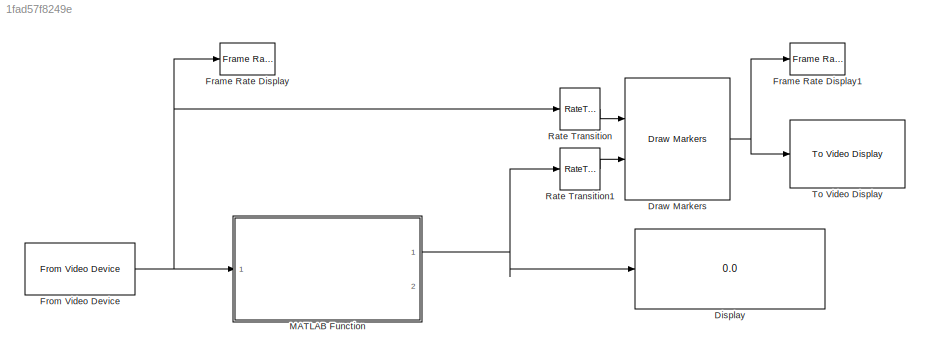
MODEL slx_1fad57f8249e
KIND model
CONFIG InitFcn = threshold = initTrackTwoMinions(debugFlag);
BLOCK [Display] Display
  Decimation = 1
  Ports = [1]
BLOCK [Reference] Draw Markers  REF=visiontextngfix/Draw Markers
  LockScale = off
  Ports = [2, 1]
  SourceBlock = visiontextngfix/Draw Markers
  SourceType = Draw Markers
  accumFracLength = 14
  accumMode = Same as product output
  accumWordLength = 32
  antialiasing = off
  color = [255 0 0]
  display = User-specified value
  fill = off
  fillClrSource = Specify via dialog
  imagePorts = One multidimensional signal
  inType = Obsolete
  intensity = 200
  memoryFracLength = 15
  memoryMode = Specify word length
  memoryWordLength = 16
  opacity = 0.6
  overflowMode = off
  prodOutputFracLength = 14
  prodOutputMode = Binary point scaling
  prodOutputWordLength = 32
  roundingMode = Floor
  shape = X-mark
  size = 10
  viewport = Entire image
BLOCK [Reference] Frame Rate Display  REF=visionsinks/Frame Rate
Display
  Ports = [1]
  SourceBlock = visionsinks/Frame Rate\nDisplay
  SourceType = Frame Rate Display
  UpdateRate = 10
BLOCK [Reference] Frame Rate Display1  REF=visionsinks/Frame Rate
Display
  Ports = [1]
  SourceBlock = visionsinks/Frame Rate\nDisplay
  SourceType = Frame Rate Display
  UpdateRate = 10
BLOCK [Reference] From Video Device  REF=imaqlib/From Video Device
  AllMetadata = IsPositionTracked;IsSkeletonTracked;JointDepthIndices;JointImageIndices;JointTrackingState;JointWorldCoordinates;PositionDepthIndices;PositionImageIndices;PositionWorldCoordinates;SegmentationData;SkeletonTrackingID
  BayerSensorAlignment = grbg
  BlockHandle = 1921.0006
  CanDoHWTrigger = no
  DataType = single
  DevXMLPath = <path>
  Device = winvideo 1 (USB Video Device)
  DeviceMenu = winvideo 1 (USB Video Device)
  EnableHWTrigger = off
  EngLibPath = C:\Program Files\MATLAB\R2014b\toolbox\imaq\imaqblks\imaqmex\win64
  EngXMLPath = C:\Program Files\MATLAB\R2014b\toolbox\imaq\imaq\private
  ObjConstructor = videoinput('winvideo', 1)
  OutputPortsMode = One multidimensional signal
  Ports = [0, 1]
  ROIColumn = 0
  ROIHeight = 480
  ROIPosition = [0 0 480 640]
  ROIRow = 0
  ROIWidth = 640
  ReturnedColorSpace = rgb
  SampleTime = 1/30
  SourceBlock = imaqlib/From Video Device
  SourceType = From Video Device
  TriggerConfiguration = none/none
  UserDataPersistent = on
  VideoFormat = MJPG_640x480
  VideoFormatMenu = MJPG_640x480
  VideoSource = input1
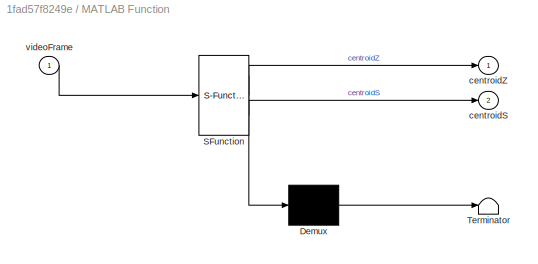
BLOCK [SubSystem] MATLAB Function
  ErrorFcn = Stateflow.Translate.translate
  PermitHierarchicalResolution = ExplicitOnly
  Ports = [1, 2]
  RequestExecContextInheritance = off
  SFBlockType = MATLAB Function
  TreatAsAtomicUnit = on
BLOCK [Demux] MATLAB Function/ Demux 
  Outputs = 1
  Ports = [1, 1]
BLOCK [S-Function] MATLAB Function/ SFunction 
  EnableBusSupport = on
  FunctionName = sf_sfun
  PortCounts = [1 3]
  Ports = [1, 3]
  Tag = Stateflow S-Function trackTwoSimulinkPerformanceTest 2
BLOCK [Terminator] MATLAB Function/ Terminator 
BLOCK [Outport] MATLAB Function/centroidS
  IconDisplay = Port number
  Port = 2
BLOCK [Outport] MATLAB Function/centroidZ
  IconDisplay = Port number
BLOCK [Inport] MATLAB Function/videoFrame
  IconDisplay = Port number
BLOCK [RateTransition] Rate Transition
  OutPortSampleTime = 0.5
BLOCK [RateTransition] Rate Transition1
  OutPortSampleTime = 0.5
BLOCK [Reference] To Video Display  REF=visionsinks/To Video Display
  OutputDevice = On-screen video monitor
  Ports = [1]
  SourceBlock = visionsinks/To Video Display
  SourceType = To Video Display
  dataOrg = Column-major
  fullScreen = off
  imagePorts = One multidimensional signal
  inputColorFormat = RGB
  inputType = Obsolete
  isWindowOpen = on
  openAtMdlStart = on
  saveWindowSize = off
  videoWindowHeight = 480
  videoWindowWidth = 640
  videoWindowX = 884
  videoWindowY = -1
NET Draw Markers:1 -> Frame Rate Display1:1, To Video Display:1
NET From Video Device:1 -> Frame Rate Display:1, MATLAB Function:1, Rate Transition:1
NET MATLAB Function:1 -> Display:1, Rate Transition1:1
LINE Rate Transition1:1 -> Draw Markers:2
LINE Rate Transition:1 -> Draw Markers:1
note: NET lines group one-source signal fan-out (src -> all destinations, sorted); 1:1 wires keep LINE
CHART MATLAB Function states=1 transitions=1
  STATE_LABEL 'eML_blk_kernel()'
  STATE_LABEL "SCRIPT:\nfunction [centroidZ,centroidS] = fcn(videoFrame)\n%#codegen\n    coder.extrinsic('trackTwoMinions');\n    \n    centroidZ = zeros([2,2],'single');\n    centroidS = zeros([1,2],'double');\n    [centroidZ,centroidS] = trackTwoMinions(videoFrame,0);\nend\n"
note: 1 file-system path scrubbed to <path> (not preserved elsewhere — flat text is the only slx artifact)
